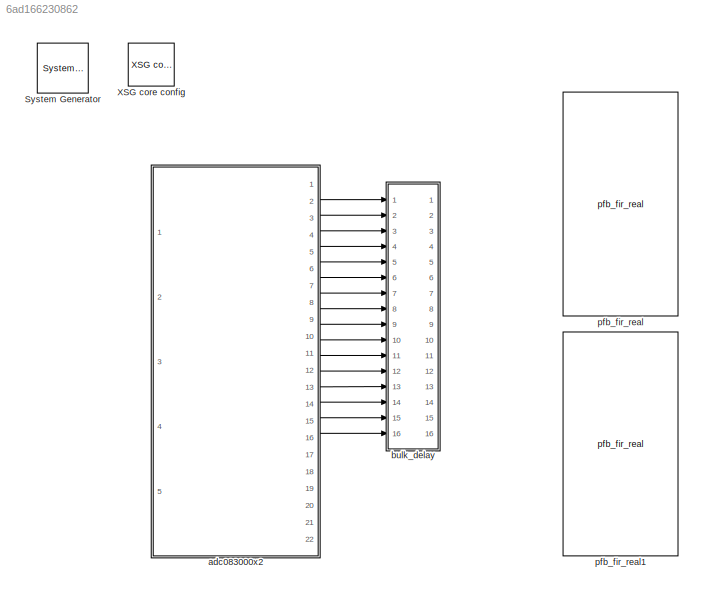
MODEL slx_6ad166230862
KIND model
BLOCK [Reference]  System Generator  REF=xbsIndex_r4/ System Generator
  AttributesFormatString = System\nGenerator
  Impl_file = ISE Defaults
  Ports = []
  SourceBlock = xbsIndex_r4/ System Generator
  SourceType = Xilinx System Generator Block
  Synth_file = XST Defaults
  Tag = genX
  UserDataPersistent = on
  block_type = sysgen
  block_version = 11.4
  clock_wrapper = Clock Enables
  core_generation = According to Block Masks
  dbl_ovrd = According to Block Masks
  dcm_input_clock_period = 100
  deprecated_control = off
  directory = ./spec_2pol_4kw_6tap_pfb/sysgen
  eval_field = 0
  has_advanced_control = 0
  incr_netlist = off
  infoedit = System Generator
  package = ff1136
  part = xc5vsx95t
  proj_type = Project Navigator
  run_coregen = off
  sg_icon_stat = 51,50,0,0,token,white,0,58c5b5770fe5f7c311f53dbc6e73f0f6,right,,[ ],[ ]
  sg_mask_display = fprintf('','COMMENT: begin icon graphics');\npatch([0 51 51 0 0 ],[0 0 50 50 0 ],[1 1 1 ]);\npatch([1.6375 16.81 27.31 37.81 48.31 27.31 12.1375 1.6375 ],[36.655 36.655 47.155 36.655 47.155 47.155 47.155 36.655 ],[0.933333 0.203922 0.141176 ]);\npatch([12.1375 27.31 16.81 1.6375 12.1375 ],[26.155 26.155 36.655 36.655 26.155 ],[0.698039 0.0313725 0.219608 ]);\npatch([1.6375 16.81 27.31 12.1375 1.6375 ]...<+327ch>
  sggui_pos = 326,241,464,470
  simulink_period = 1
  speed = -1
  synthesis_tool = XST
  sysclk_period = 2.6667
  testbench = off
  trim_vbits = Everywhere in SubSystem
  xilinxfamily = virtex5
BLOCK [Reference] XSG core config  REF=xps_library/XSG core config  (lib defined in mdl_00b5cec29cd0, mdl_02ab6ecaa3d1, +5 more)
  Ports = []
  ROACH2_clk_src = adc0_clk
  ROACH_clk_src = adc0_clk
  SourceBlock = xps_library/XSG core config
  SourceType = xsg core config
  Tag = xps:xsg
  clk_rate = 375
  clk_src = adc0_clk
  hw_sys = ROACH:sx95t
  sample_period = 1
  synthesis_tool = XST
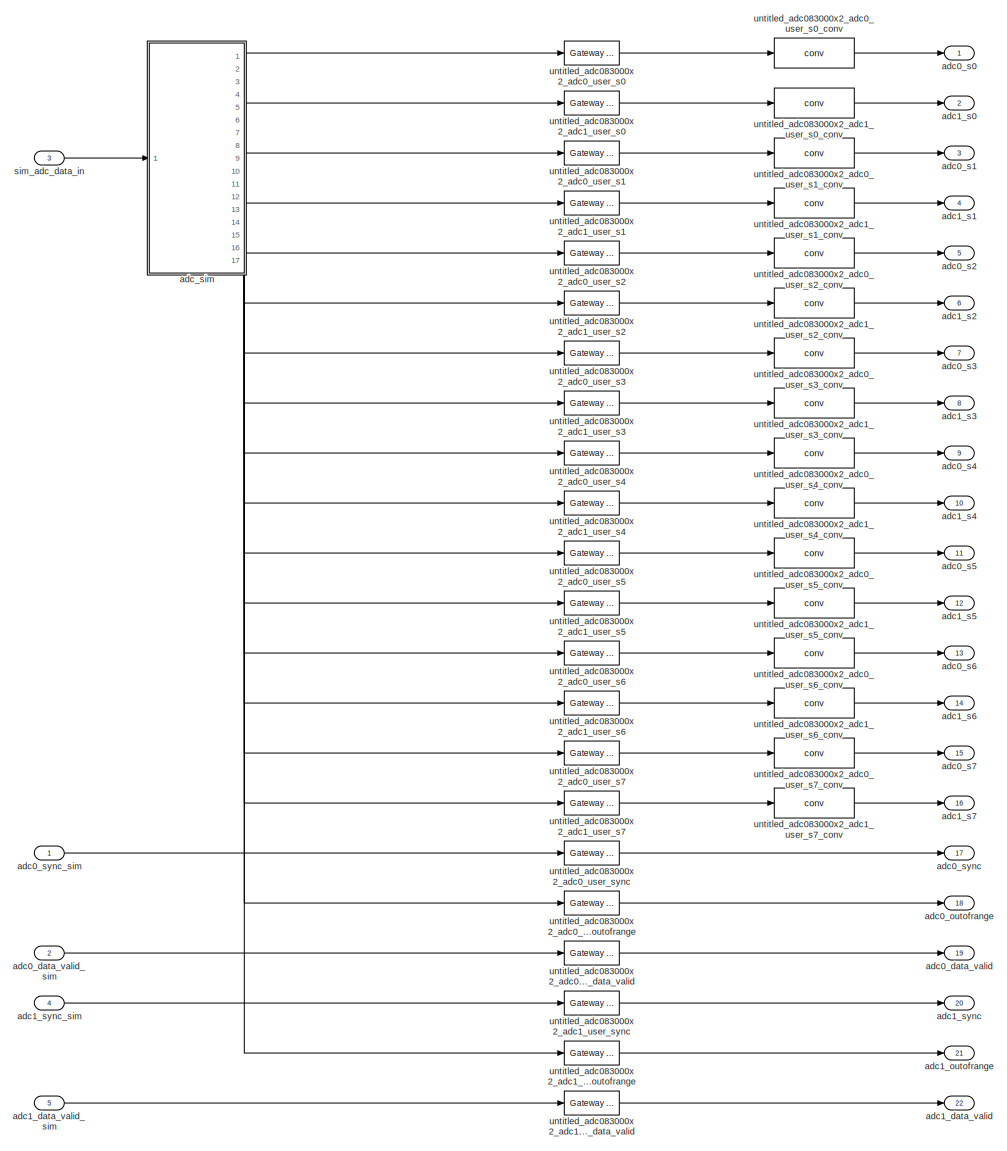
[diagram: adc083000x2 - part 1/1, most of the canvas]
BLOCK [SubSystem] adc083000x2
  AncestorBlock = xps_library/adc083000x2
  FunctionWithSeparateData = off
  MaskHideContents = off
  MinAlgLoopOccurrences = off
  Opaque = off
  Ports = [5, 22]
  PropExecContextOutsideSubsystem = off
  RTWSystemCode = Auto
  RequestExecContextInheritance = off
  Tag = xps:adc083000x2
BLOCK [Outport] adc083000x2/adc0_data_valid
  IconDisplay = Port number
  Port = 19
BLOCK [Inport] adc083000x2/adc0_data_valid_sim
  IconDisplay = Port number
  Port = 2
BLOCK [Outport] adc083000x2/adc0_outofrange
  IconDisplay = Port number
  Port = 18
BLOCK [Outport] adc083000x2/adc0_s0
  IconDisplay = Port number
BLOCK [Outport] adc083000x2/adc0_s1
  IconDisplay = Port number
  Port = 3
BLOCK [Outport] adc083000x2/adc0_s2
  IconDisplay = Port number
  Port = 5
BLOCK [Outport] adc083000x2/adc0_s3
  IconDisplay = Port number
  Port = 7
BLOCK [Outport] adc083000x2/adc0_s4
  IconDisplay = Port number
  Port = 9
BLOCK [Outport] adc083000x2/adc0_s5
  IconDisplay = Port number
  Port = 11
BLOCK [Outport] adc083000x2/adc0_s6
  IconDisplay = Port number
  Port = 13
BLOCK [Outport] adc083000x2/adc0_s7
  IconDisplay = Port number
  Port = 15
BLOCK [Outport] adc083000x2/adc0_sync
  IconDisplay = Port number
  Port = 17
BLOCK [Inport] adc083000x2/adc0_sync_sim
  IconDisplay = Port number
BLOCK [Outport] adc083000x2/adc1_data_valid
  IconDisplay = Port number
  Port = 22
BLOCK [Inport] adc083000x2/adc1_data_valid_sim
  IconDisplay = Port number
  Port = 5
BLOCK [Outport] adc083000x2/adc1_outofrange
  IconDisplay = Port number
  Port = 21
BLOCK [Outport] adc083000x2/adc1_s0
  IconDisplay = Port number
  Port = 2
BLOCK [Outport] adc083000x2/adc1_s1
  IconDisplay = Port number
  Port = 4
BLOCK [Outport] adc083000x2/adc1_s2
  IconDisplay = Port number
  Port = 6
BLOCK [Outport] adc083000x2/adc1_s3
  IconDisplay = Port number
  Port = 8
BLOCK [Outport] adc083000x2/adc1_s4
  IconDisplay = Port number
  Port = 10
BLOCK [Outport] adc083000x2/adc1_s5
  IconDisplay = Port number
  Port = 12
BLOCK [Outport] adc083000x2/adc1_s6
  IconDisplay = Port number
  Port = 14
BLOCK [Outport] adc083000x2/adc1_s7
  IconDisplay = Port number
  Port = 16
BLOCK [Outport] adc083000x2/adc1_sync
  IconDisplay = Port number
  Port = 20
BLOCK [Inport] adc083000x2/adc1_sync_sim
  IconDisplay = Port number
  Port = 4
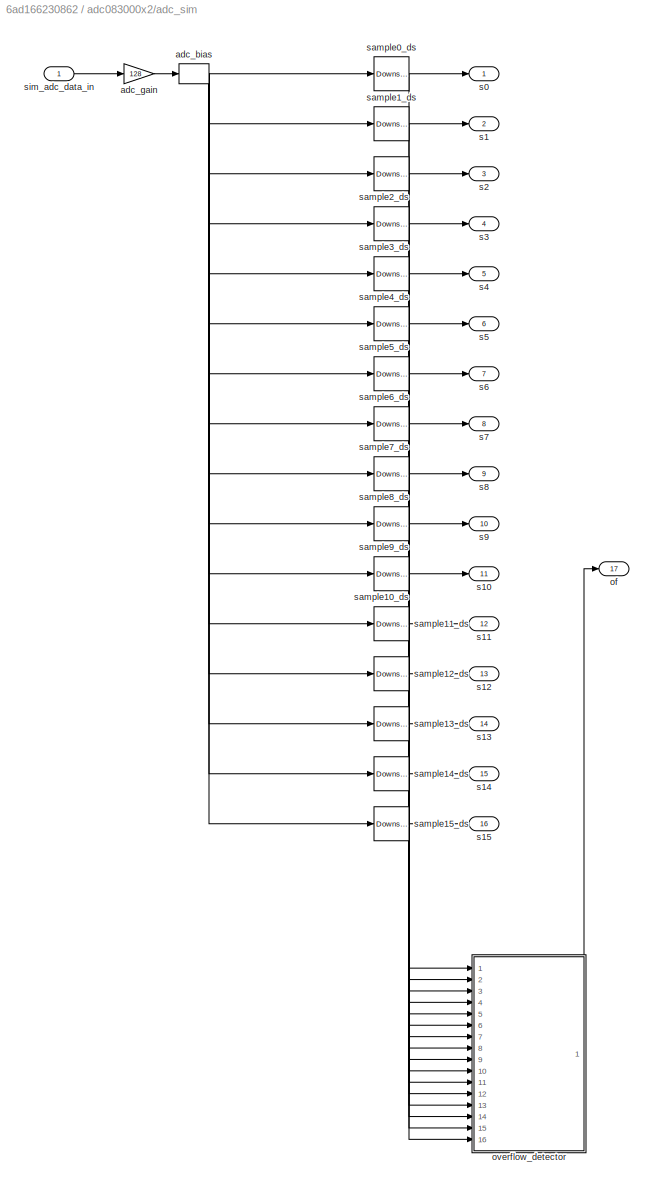
BLOCK [SubSystem] adc083000x2/adc_sim
  AncestorBlock = xps_library/ADCs/adc_sim
  FunctionWithSeparateData = off
  MaskHideContents = off
  MinAlgLoopOccurrences = off
  Opaque = off
  Ports = [1, 17]
  PropExecContextOutsideSubsystem = off
  RTWSystemCode = Auto
  RequestExecContextInheritance = off
  UserDataPersistent = on
BLOCK [Bias] adc083000x2/adc_sim/adc_bias
  Bias = 128
BLOCK [Gain] adc083000x2/adc_sim/adc_gain
  Gain = 128
  OutDataTypeStr = Inherit: Inherit via internal rule
  ParamDataTypeStr = Inherit: Inherit via internal rule
  SaturateOnIntegerOverflow = off
BLOCK [Outport] adc083000x2/adc_sim/of
  IconDisplay = Port number
  Port = 17
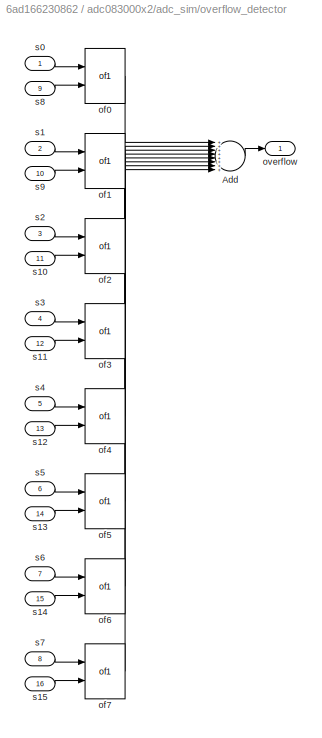
BLOCK [SubSystem] adc083000x2/adc_sim/overflow_detector
  AncestorBlock = xps_library/ADCs/of_detect_bus
  FunctionWithSeparateData = off
  MaskHideContents = off
  MinAlgLoopOccurrences = off
  Opaque = off
  Ports = [16, 1]
  PropExecContextOutsideSubsystem = off
  RTWSystemCode = Auto
  RequestExecContextInheritance = off
  UserDataPersistent = on
BLOCK [Sum] adc083000x2/adc_sim/overflow_detector/Add
  InputSameDT = off
  Inputs = ++++++++
  OutDataTypeStr = Inherit: Inherit via internal rule
  Ports = [8, 1]
  SaturateOnIntegerOverflow = off
BLOCK [Reference] adc083000x2/adc_sim/overflow_detector/of0  REF=xps_library/ADCs/of1  (lib defined in mdl_00b5cec29cd0, mdl_02ab6ecaa3d1, +5 more)
  Ports = [2, 1]
  SourceBlock = xps_library/ADCs/of1
  SourceType = of
  bit_num = 0
  n_adc_bits = 8
BLOCK [Reference] adc083000x2/adc_sim/overflow_detector/of1  REF=xps_library/ADCs/of1  (lib defined in mdl_00b5cec29cd0, mdl_02ab6ecaa3d1, +5 more)
  Ports = [2, 1]
  SourceBlock = xps_library/ADCs/of1
  SourceType = of
  bit_num = 0
  n_adc_bits = 8
BLOCK [Reference] adc083000x2/adc_sim/overflow_detector/of2  REF=xps_library/ADCs/of1  (lib defined in mdl_00b5cec29cd0, mdl_02ab6ecaa3d1, +5 more)
  Ports = [2, 1]
  SourceBlock = xps_library/ADCs/of1
  SourceType = of
  bit_num = 0
  n_adc_bits = 8
BLOCK [Reference] adc083000x2/adc_sim/overflow_detector/of3  REF=xps_library/ADCs/of1  (lib defined in mdl_00b5cec29cd0, mdl_02ab6ecaa3d1, +5 more)
  Ports = [2, 1]
  SourceBlock = xps_library/ADCs/of1
  SourceType = of
  bit_num = 0
  n_adc_bits = 8
BLOCK [Reference] adc083000x2/adc_sim/overflow_detector/of4  REF=xps_library/ADCs/of1  (lib defined in mdl_00b5cec29cd0, mdl_02ab6ecaa3d1, +5 more)
  Ports = [2, 1]
  SourceBlock = xps_library/ADCs/of1
  SourceType = of
  bit_num = 0
  n_adc_bits = 8
BLOCK [Reference] adc083000x2/adc_sim/overflow_detector/of5  REF=xps_library/ADCs/of1  (lib defined in mdl_00b5cec29cd0, mdl_02ab6ecaa3d1, +5 more)
  Ports = [2, 1]
  SourceBlock = xps_library/ADCs/of1
  SourceType = of
  bit_num = 0
  n_adc_bits = 8
BLOCK [Reference] adc083000x2/adc_sim/overflow_detector/of6  REF=xps_library/ADCs/of1  (lib defined in mdl_00b5cec29cd0, mdl_02ab6ecaa3d1, +5 more)
  Ports = [2, 1]
  SourceBlock = xps_library/ADCs/of1
  SourceType = of
  bit_num = 0
  n_adc_bits = 8
BLOCK [Reference] adc083000x2/adc_sim/overflow_detector/of7  REF=xps_library/ADCs/of1  (lib defined in mdl_00b5cec29cd0, mdl_02ab6ecaa3d1, +5 more)
  Ports = [2, 1]
  SourceBlock = xps_library/ADCs/of1
  SourceType = of
  bit_num = 0
  n_adc_bits = 8
BLOCK [Outport] adc083000x2/adc_sim/overflow_detector/overflow
  IconDisplay = Port number
BLOCK [Inport] adc083000x2/adc_sim/overflow_detector/s0
  IconDisplay = Port number
BLOCK [Inport] adc083000x2/adc_sim/overflow_detector/s1
  IconDisplay = Port number
  Port = 2
BLOCK [Inport] adc083000x2/adc_sim/overflow_detector/s10
  IconDisplay = Port number
  Port = 11
BLOCK [Inport] adc083000x2/adc_sim/overflow_detector/s11
  IconDisplay = Port number
  Port = 12
BLOCK [Inport] adc083000x2/adc_sim/overflow_detector/s12
  IconDisplay = Port number
  Port = 13
BLOCK [Inport] adc083000x2/adc_sim/overflow_detector/s13
  IconDisplay = Port number
  Port = 14
BLOCK [Inport] adc083000x2/adc_sim/overflow_detector/s14
  IconDisplay = Port number
  Port = 15
BLOCK [Inport] adc083000x2/adc_sim/overflow_detector/s15
  IconDisplay = Port number
  Port = 16
BLOCK [Inport] adc083000x2/adc_sim/overflow_detector/s2
  IconDisplay = Port number
  Port = 3
BLOCK [Inport] adc083000x2/adc_sim/overflow_detector/s3
  IconDisplay = Port number
  Port = 4
BLOCK [Inport] adc083000x2/adc_sim/overflow_detector/s4
  IconDisplay = Port number
  Port = 5
BLOCK [Inport] adc083000x2/adc_sim/overflow_detector/s5
  IconDisplay = Port number
  Port = 6
BLOCK [Inport] adc083000x2/adc_sim/overflow_detector/s6
  IconDisplay = Port number
  Port = 7
BLOCK [Inport] adc083000x2/adc_sim/overflow_detector/s7
  IconDisplay = Port number
  Port = 8
BLOCK [Inport] adc083000x2/adc_sim/overflow_detector/s8
  IconDisplay = Port number
  Port = 9
BLOCK [Inport] adc083000x2/adc_sim/overflow_detector/s9
  IconDisplay = Port number
  Port = 10
BLOCK [Outport] adc083000x2/adc_sim/s0
  IconDisplay = Port number
BLOCK [Outport] adc083000x2/adc_sim/s1
  IconDisplay = Port number
  Port = 2
BLOCK [Outport] adc083000x2/adc_sim/s10
  IconDisplay = Port number
  Port = 11
BLOCK [Outport] adc083000x2/adc_sim/s11
  IconDisplay = Port number
  Port = 12
BLOCK [Outport] adc083000x2/adc_sim/s12
  IconDisplay = Port number
  Port = 13
BLOCK [Outport] adc083000x2/adc_sim/s13
  IconDisplay = Port number
  Port = 14
BLOCK [Outport] adc083000x2/adc_sim/s14
  IconDisplay = Port number
  Port = 15
BLOCK [Outport] adc083000x2/adc_sim/s15
  IconDisplay = Port number
  Port = 16
BLOCK [Outport] adc083000x2/adc_sim/s2
  IconDisplay = Port number
  Port = 3
BLOCK [Outport] adc083000x2/adc_sim/s3
  IconDisplay = Port number
  Port = 4
BLOCK [Outport] adc083000x2/adc_sim/s4
  IconDisplay = Port number
  Port = 5
BLOCK [Outport] adc083000x2/adc_sim/s5
  IconDisplay = Port number
  Port = 6
BLOCK [Outport] adc083000x2/adc_sim/s6
  IconDisplay = Port number
  Port = 7
BLOCK [Outport] adc083000x2/adc_sim/s7
  IconDisplay = Port number
  Port = 8
BLOCK [Outport] adc083000x2/adc_sim/s8
  IconDisplay = Port number
  Port = 9
BLOCK [Outport] adc083000x2/adc_sim/s9
  IconDisplay = Port number
  Port = 10
BLOCK [Reference] adc083000x2/adc_sim/sample0_ds  REF=dspsigops/Downsample
  InputProcessing = Inherited (this choice will be removed - see release notes)
  N = 16
  Ports = [1, 1]
  RateOptions = Enforce single-rate processing
  SourceBlock = dspsigops/Downsample
  SourceType = Downsample
  UserDataPersistent = on
  fmode = Maintain input frame rate
  ic = 0
  phase = 1
  smode = Force single rate
BLOCK [Reference] adc083000x2/adc_sim/sample10_ds  REF=dspsigops/Downsample
  InputProcessing = Inherited (this choice will be removed - see release notes)
  N = 16
  Ports = [1, 1]
  RateOptions = Enforce single-rate processing
  SourceBlock = dspsigops/Downsample
  SourceType = Downsample
  UserDataPersistent = on
  fmode = Maintain input frame rate
  ic = 0
  phase = 11
  smode = Force single rate
BLOCK [Reference] adc083000x2/adc_sim/sample11_ds  REF=dspsigops/Downsample
  InputProcessing = Inherited (this choice will be removed - see release notes)
  N = 16
  Ports = [1, 1]
  RateOptions = Enforce single-rate processing
  SourceBlock = dspsigops/Downsample
  SourceType = Downsample
  UserDataPersistent = on
  fmode = Maintain input frame rate
  ic = 0
  phase = 12
  smode = Force single rate
BLOCK [Reference] adc083000x2/adc_sim/sample12_ds  REF=dspsigops/Downsample
  InputProcessing = Inherited (this choice will be removed - see release notes)
  N = 16
  Ports = [1, 1]
  RateOptions = Enforce single-rate processing
  SourceBlock = dspsigops/Downsample
  SourceType = Downsample
  UserDataPersistent = on
  fmode = Maintain input frame rate
  ic = 0
  phase = 13
  smode = Force single rate
BLOCK [Reference] adc083000x2/adc_sim/sample13_ds  REF=dspsigops/Downsample
  InputProcessing = Inherited (this choice will be removed - see release notes)
  N = 16
  Ports = [1, 1]
  RateOptions = Enforce single-rate processing
  SourceBlock = dspsigops/Downsample
  SourceType = Downsample
  UserDataPersistent = on
  fmode = Maintain input frame rate
  ic = 0
  phase = 14
  smode = Force single rate
BLOCK [Reference] adc083000x2/adc_sim/sample14_ds  REF=dspsigops/Downsample
  InputProcessing = Inherited (this choice will be removed - see release notes)
  N = 16
  Ports = [1, 1]
  RateOptions = Enforce single-rate processing
  SourceBlock = dspsigops/Downsample
  SourceType = Downsample
  UserDataPersistent = on
  fmode = Maintain input frame rate
  ic = 0
  phase = 15
  smode = Force single rate
BLOCK [Reference] adc083000x2/adc_sim/sample15_ds  REF=dspsigops/Downsample
  InputProcessing = Inherited (this choice will be removed - see release notes)
  N = 16
  Ports = [1, 1]
  RateOptions = Enforce single-rate processing
  SourceBlock = dspsigops/Downsample
  SourceType = Downsample
  UserDataPersistent = on
  fmode = Maintain input frame rate
  ic = 0
  phase = 0
  smode = Force single rate
BLOCK [Reference] adc083000x2/adc_sim/sample1_ds  REF=dspsigops/Downsample
  InputProcessing = Inherited (this choice will be removed - see release notes)
  N = 16
  Ports = [1, 1]
  RateOptions = Enforce single-rate processing
  SourceBlock = dspsigops/Downsample
  SourceType = Downsample
  UserDataPersistent = on
  fmode = Maintain input frame rate
  ic = 0
  phase = 2
  smode = Force single rate
BLOCK [Reference] adc083000x2/adc_sim/sample2_ds  REF=dspsigops/Downsample
  InputProcessing = Inherited (this choice will be removed - see release notes)
  N = 16
  Ports = [1, 1]
  RateOptions = Enforce single-rate processing
  SourceBlock = dspsigops/Downsample
  SourceType = Downsample
  UserDataPersistent = on
  fmode = Maintain input frame rate
  ic = 0
  phase = 3
  smode = Force single rate
BLOCK [Reference] adc083000x2/adc_sim/sample3_ds  REF=dspsigops/Downsample
  InputProcessing = Inherited (this choice will be removed - see release notes)
  N = 16
  Ports = [1, 1]
  RateOptions = Enforce single-rate processing
  SourceBlock = dspsigops/Downsample
  SourceType = Downsample
  UserDataPersistent = on
  fmode = Maintain input frame rate
  ic = 0
  phase = 4
  smode = Force single rate
BLOCK [Reference] adc083000x2/adc_sim/sample4_ds  REF=dspsigops/Downsample
  InputProcessing = Inherited (this choice will be removed - see release notes)
  N = 16
  Ports = [1, 1]
  RateOptions = Enforce single-rate processing
  SourceBlock = dspsigops/Downsample
  SourceType = Downsample
  UserDataPersistent = on
  fmode = Maintain input frame rate
  ic = 0
  phase = 5
  smode = Force single rate
BLOCK [Reference] adc083000x2/adc_sim/sample5_ds  REF=dspsigops/Downsample
  InputProcessing = Inherited (this choice will be removed - see release notes)
  N = 16
  Ports = [1, 1]
  RateOptions = Enforce single-rate processing
  SourceBlock = dspsigops/Downsample
  SourceType = Downsample
  UserDataPersistent = on
  fmode = Maintain input frame rate
  ic = 0
  phase = 6
  smode = Force single rate
BLOCK [Reference] adc083000x2/adc_sim/sample6_ds  REF=dspsigops/Downsample
  InputProcessing = Inherited (this choice will be removed - see release notes)
  N = 16
  Ports = [1, 1]
  RateOptions = Enforce single-rate processing
  SourceBlock = dspsigops/Downsample
  SourceType = Downsample
  UserDataPersistent = on
  fmode = Maintain input frame rate
  ic = 0
  phase = 7
  smode = Force single rate
BLOCK [Reference] adc083000x2/adc_sim/sample7_ds  REF=dspsigops/Downsample
  InputProcessing = Inherited (this choice will be removed - see release notes)
  N = 16
  Ports = [1, 1]
  RateOptions = Enforce single-rate processing
  SourceBlock = dspsigops/Downsample
  SourceType = Downsample
  UserDataPersistent = on
  fmode = Maintain input frame rate
  ic = 0
  phase = 8
  smode = Force single rate
BLOCK [Reference] adc083000x2/adc_sim/sample8_ds  REF=dspsigops/Downsample
  InputProcessing = Inherited (this choice will be removed - see release notes)
  N = 16
  Ports = [1, 1]
  RateOptions = Enforce single-rate processing
  SourceBlock = dspsigops/Downsample
  SourceType = Downsample
  UserDataPersistent = on
  fmode = Maintain input frame rate
  ic = 0
  phase = 9
  smode = Force single rate
BLOCK [Reference] adc083000x2/adc_sim/sample9_ds  REF=dspsigops/Downsample
  InputProcessing = Inherited (this choice will be removed - see release notes)
  N = 16
  Ports = [1, 1]
  RateOptions = Enforce single-rate processing
  SourceBlock = dspsigops/Downsample
  SourceType = Downsample
  UserDataPersistent = on
  fmode = Maintain input frame rate
  ic = 0
  phase = 10
  smode = Force single rate
BLOCK [Inport] adc083000x2/adc_sim/sim_adc_data_in
  IconDisplay = Port number
BLOCK [Inport] adc083000x2/sim_adc_data_in
  IconDisplay = Port number
  Port = 3
BLOCK [Reference] adc083000x2/untitled_adc083000x2_adc0_user_data_valid  REF=xbsIndex_r4/Gateway In
  ADCChannel = '1'
  LOCs = {}
  Ports = [1, 1]
  SourceBlock = xbsIndex_r4/Gateway In
  SourceType = Xilinx Gateway In Block
  UseAsADC = off
  arith_type = Unsigned
  bin_pt = 0
  block_type = gatewayin
  dbl_ovrd = off
  exp_width = 8
  frac_width = 24
  gui_display_data_type = Fixed-point
  has_advanced_control = 0
  hdl_port = on
  infoedit = Gateway in block.  Converts inputs of type Simulink integer, single, double and fixed-point to  Xilinx fixed-point or floating-point data type.<br><br>Hardware notes:  In hardware these blocks become top level input ports.  <repeated x22 — deduplicated; at blocks: untitled_adc083000x2_adc0_user_data_valid, untitled_adc083000x2_adc0_user_outofrange, untitled_adc083000x2_adc0_user_s0, untitled_adc083000x2_adc0_user_s1, untitled_adc083000x2_adc0_user_s2, untitled_adc083000x2_adc0_user_s3, untitled_adc083000x2_adc0_user_s4, untitled_adc083000x2_adc0_user_s5, untitled_adc083000x2_adc0_user_s6, untitled_adc083000x2_adc0_user_s7, untitled_adc083000x2_adc0_user_sync, untitled_adc083000x2_adc1_user_data_valid, untitled_adc083000x2_adc1_user_outofrange, untitled_adc083000x2_adc1_user_s0, untitled_adc083000x2_adc1_user_s1, untitled_adc083000x2_adc1_user_s2, +6 more>
  inherit_from_input = off
  locs_specified = off
  n_bits = 1
  overflow = Saturate
  period = 1
  preci_type = Single
  quantization = Round  (unbiased: +/- Inf)
  sg_icon_stat = 55,24,1,1,white,yellow,1,00d3666e,right,,[ ],[ ]
  sg_mask_display = fprintf('','COMMENT: begin icon graphics');\npatch([0 55 55 0 0 ],[0 0 24 24 0 ],[0.95 0.93 0.65 ]);\nplot([0 55 55 0 0 ],[0 0 24 24 0 ]);\npatch([20.325 24.66 27.66 30.66 33.66 27.66 23.325 20.325 ],[15.33 15.33 18.33 15.33 18.33 18.33 18.33 15.33 ],[1 1 1 ]);\npatch([23.325 27.66 24.66 20.325 23.325 ],[12.33 12.33 15.33 15.33 12.33 ],[0.985 0.979 0.895 ]);\npatch([20.325 24.66 27.66 23.325 20.325 ],[...<+395ch>  <repeated x22 — deduplicated; at blocks: untitled_adc083000x2_adc0_user_data_valid, untitled_adc083000x2_adc0_user_outofrange, untitled_adc083000x2_adc0_user_s0, untitled_adc083000x2_adc0_user_s1, untitled_adc083000x2_adc0_user_s2, untitled_adc083000x2_adc0_user_s3, untitled_adc083000x2_adc0_user_s4, untitled_adc083000x2_adc0_user_s5, untitled_adc083000x2_adc0_user_s6, untitled_adc083000x2_adc0_user_s7, untitled_adc083000x2_adc0_user_sync, untitled_adc083000x2_adc1_user_data_valid, untitled_adc083000x2_adc1_user_outofrange, untitled_adc083000x2_adc1_user_s0, untitled_adc083000x2_adc1_user_s1, untitled_adc083000x2_adc1_user_s2, +6 more>
  sggui_pos = -1,-1,-1,-1
  timing_constraint = None
  xl_area = [0,0,0,0,0,0,0]
  xl_use_area = off
BLOCK [Reference] adc083000x2/untitled_adc083000x2_adc0_user_outofrange  REF=xbsIndex_r4/Gateway In
  ADCChannel = '1'
  LOCs = {}
  Ports = [1, 1]
  SourceBlock = xbsIndex_r4/Gateway In
  SourceType = Xilinx Gateway In Block
  UseAsADC = off
  arith_type = Unsigned
  bin_pt = 0
  block_type = gatewayin
  dbl_ovrd = off
  exp_width = 8
  frac_width = 24
  gui_display_data_type = Fixed-point
  has_advanced_control = 0
  hdl_port = on
  inherit_from_input = off
  locs_specified = off
  n_bits = 4
  overflow = Saturate
  period = 1
  preci_type = Single
  quantization = Round  (unbiased: +/- Inf)
  sg_icon_stat = 55,24,1,1,white,yellow,1,00d3666e,right,,[ ],[ ]
  sggui_pos = -1,-1,-1,-1
  timing_constraint = None
  xl_area = [0,0,0,0,0,0,0]
  xl_use_area = off
BLOCK [Reference] adc083000x2/untitled_adc083000x2_adc0_user_s0  REF=xbsIndex_r4/Gateway In
  ADCChannel = '1'
  LOCs = {}
  Ports = [1, 1]
  SourceBlock = xbsIndex_r4/Gateway In
  SourceType = Xilinx Gateway In Block
  UseAsADC = off
  arith_type = Unsigned
  bin_pt = 0
  block_type = gatewayin
  dbl_ovrd = off
  exp_width = 8
  frac_width = 24
  gui_display_data_type = Fixed-point
  has_advanced_control = 0
  hdl_port = on
  inherit_from_input = off
  locs_specified = off
  n_bits = 8
  overflow = Saturate
  period = 1
  preci_type = Single
  quantization = Round  (unbiased: +/- Inf)
  sg_icon_stat = 55,24,1,1,white,yellow,1,00d3666e,right,,[ ],[ ]
  sggui_pos = -1,-1,-1,-1
  timing_constraint = None
  xl_area = [0,0,0,0,0,0,0]
  xl_use_area = off
BLOCK [Reference] adc083000x2/untitled_adc083000x2_adc0_user_s0_conv  REF=xps_library/ADCs/conv  (lib defined in mdl_00b5cec29cd0, mdl_02ab6ecaa3d1, +5 more)
  Ports = [1, 1]
  SourceBlock = xps_library/ADCs/conv
  bit_width = 8
BLOCK [Reference] adc083000x2/untitled_adc083000x2_adc0_user_s1  REF=xbsIndex_r4/Gateway In
  ADCChannel = '1'
  LOCs = {}
  Ports = [1, 1]
  SourceBlock = xbsIndex_r4/Gateway In
  SourceType = Xilinx Gateway In Block
  UseAsADC = off
  arith_type = Unsigned
  bin_pt = 0
  block_type = gatewayin
  dbl_ovrd = off
  exp_width = 8
  frac_width = 24
  gui_display_data_type = Fixed-point
  has_advanced_control = 0
  hdl_port = on
  inherit_from_input = off
  locs_specified = off
  n_bits = 8
  overflow = Saturate
  period = 1
  preci_type = Single
  quantization = Round  (unbiased: +/- Inf)
  sg_icon_stat = 55,24,1,1,white,yellow,1,00d3666e,right,,[ ],[ ]
  sggui_pos = -1,-1,-1,-1
  timing_constraint = None
  xl_area = [0,0,0,0,0,0,0]
  xl_use_area = off
BLOCK [Reference] adc083000x2/untitled_adc083000x2_adc0_user_s1_conv  REF=xps_library/ADCs/conv  (lib defined in mdl_00b5cec29cd0, mdl_02ab6ecaa3d1, +5 more)
  Ports = [1, 1]
  SourceBlock = xps_library/ADCs/conv
  bit_width = 8
BLOCK [Reference] adc083000x2/untitled_adc083000x2_adc0_user_s2  REF=xbsIndex_r4/Gateway In
  ADCChannel = '1'
  LOCs = {}
  Ports = [1, 1]
  SourceBlock = xbsIndex_r4/Gateway In
  SourceType = Xilinx Gateway In Block
  UseAsADC = off
  arith_type = Unsigned
  bin_pt = 0
  block_type = gatewayin
  dbl_ovrd = off
  exp_width = 8
  frac_width = 24
  gui_display_data_type = Fixed-point
  has_advanced_control = 0
  hdl_port = on
  inherit_from_input = off
  locs_specified = off
  n_bits = 8
  overflow = Saturate
  period = 1
  preci_type = Single
  quantization = Round  (unbiased: +/- Inf)
  sg_icon_stat = 55,24,1,1,white,yellow,1,00d3666e,right,,[ ],[ ]
  sggui_pos = -1,-1,-1,-1
  timing_constraint = None
  xl_area = [0,0,0,0,0,0,0]
  xl_use_area = off
BLOCK [Reference] adc083000x2/untitled_adc083000x2_adc0_user_s2_conv  REF=xps_library/ADCs/conv  (lib defined in mdl_00b5cec29cd0, mdl_02ab6ecaa3d1, +5 more)
  Ports = [1, 1]
  SourceBlock = xps_library/ADCs/conv
  bit_width = 8
BLOCK [Reference] adc083000x2/untitled_adc083000x2_adc0_user_s3  REF=xbsIndex_r4/Gateway In
  ADCChannel = '1'
  LOCs = {}
  Ports = [1, 1]
  SourceBlock = xbsIndex_r4/Gateway In
  SourceType = Xilinx Gateway In Block
  UseAsADC = off
  arith_type = Unsigned
  bin_pt = 0
  block_type = gatewayin
  dbl_ovrd = off
  exp_width = 8
  frac_width = 24
  gui_display_data_type = Fixed-point
  has_advanced_control = 0
  hdl_port = on
  inherit_from_input = off
  locs_specified = off
  n_bits = 8
  overflow = Saturate
  period = 1
  preci_type = Single
  quantization = Round  (unbiased: +/- Inf)
  sg_icon_stat = 55,24,1,1,white,yellow,1,00d3666e,right,,[ ],[ ]
  sggui_pos = -1,-1,-1,-1
  timing_constraint = None
  xl_area = [0,0,0,0,0,0,0]
  xl_use_area = off
BLOCK [Reference] adc083000x2/untitled_adc083000x2_adc0_user_s3_conv  REF=xps_library/ADCs/conv  (lib defined in mdl_00b5cec29cd0, mdl_02ab6ecaa3d1, +5 more)
  Ports = [1, 1]
  SourceBlock = xps_library/ADCs/conv
  bit_width = 8
BLOCK [Reference] adc083000x2/untitled_adc083000x2_adc0_user_s4  REF=xbsIndex_r4/Gateway In
  ADCChannel = '1'
  LOCs = {}
  Ports = [1, 1]
  SourceBlock = xbsIndex_r4/Gateway In
  SourceType = Xilinx Gateway In Block
  UseAsADC = off
  arith_type = Unsigned
  bin_pt = 0
  block_type = gatewayin
  dbl_ovrd = off
  exp_width = 8
  frac_width = 24
  gui_display_data_type = Fixed-point
  has_advanced_control = 0
  hdl_port = on
  inherit_from_input = off
  locs_specified = off
  n_bits = 8
  overflow = Saturate
  period = 1
  preci_type = Single
  quantization = Round  (unbiased: +/- Inf)
  sg_icon_stat = 55,24,1,1,white,yellow,1,00d3666e,right,,[ ],[ ]
  sggui_pos = -1,-1,-1,-1
  timing_constraint = None
  xl_area = [0,0,0,0,0,0,0]
  xl_use_area = off
BLOCK [Reference] adc083000x2/untitled_adc083000x2_adc0_user_s4_conv  REF=xps_library/ADCs/conv  (lib defined in mdl_00b5cec29cd0, mdl_02ab6ecaa3d1, +5 more)
  Ports = [1, 1]
  SourceBlock = xps_library/ADCs/conv
  bit_width = 8
BLOCK [Reference] adc083000x2/untitled_adc083000x2_adc0_user_s5  REF=xbsIndex_r4/Gateway In
  ADCChannel = '1'
  LOCs = {}
  Ports = [1, 1]
  SourceBlock = xbsIndex_r4/Gateway In
  SourceType = Xilinx Gateway In Block
  UseAsADC = off
  arith_type = Unsigned
  bin_pt = 0
  block_type = gatewayin
  dbl_ovrd = off
  exp_width = 8
  frac_width = 24
  gui_display_data_type = Fixed-point
  has_advanced_control = 0
  hdl_port = on
  inherit_from_input = off
  locs_specified = off
  n_bits = 8
  overflow = Saturate
  period = 1
  preci_type = Single
  quantization = Round  (unbiased: +/- Inf)
  sg_icon_stat = 55,24,1,1,white,yellow,1,00d3666e,right,,[ ],[ ]
  sggui_pos = -1,-1,-1,-1
  timing_constraint = None
  xl_area = [0,0,0,0,0,0,0]
  xl_use_area = off
BLOCK [Reference] adc083000x2/untitled_adc083000x2_adc0_user_s5_conv  REF=xps_library/ADCs/conv  (lib defined in mdl_00b5cec29cd0, mdl_02ab6ecaa3d1, +5 more)
  Ports = [1, 1]
  SourceBlock = xps_library/ADCs/conv
  bit_width = 8
BLOCK [Reference] adc083000x2/untitled_adc083000x2_adc0_user_s6  REF=xbsIndex_r4/Gateway In
  ADCChannel = '1'
  LOCs = {}
  Ports = [1, 1]
  SourceBlock = xbsIndex_r4/Gateway In
  SourceType = Xilinx Gateway In Block
  UseAsADC = off
  arith_type = Unsigned
  bin_pt = 0
  block_type = gatewayin
  dbl_ovrd = off
  exp_width = 8
  frac_width = 24
  gui_display_data_type = Fixed-point
  has_advanced_control = 0
  hdl_port = on
  inherit_from_input = off
  locs_specified = off
  n_bits = 8
  overflow = Saturate
  period = 1
  preci_type = Single
  quantization = Round  (unbiased: +/- Inf)
  sg_icon_stat = 55,24,1,1,white,yellow,1,00d3666e,right,,[ ],[ ]
  sggui_pos = -1,-1,-1,-1
  timing_constraint = None
  xl_area = [0,0,0,0,0,0,0]
  xl_use_area = off
BLOCK [Reference] adc083000x2/untitled_adc083000x2_adc0_user_s6_conv  REF=xps_library/ADCs/conv  (lib defined in mdl_00b5cec29cd0, mdl_02ab6ecaa3d1, +5 more)
  Ports = [1, 1]
  SourceBlock = xps_library/ADCs/conv
  bit_width = 8
BLOCK [Reference] adc083000x2/untitled_adc083000x2_adc0_user_s7  REF=xbsIndex_r4/Gateway In
  ADCChannel = '1'
  LOCs = {}
  Ports = [1, 1]
  SourceBlock = xbsIndex_r4/Gateway In
  SourceType = Xilinx Gateway In Block
  UseAsADC = off
  arith_type = Unsigned
  bin_pt = 0
  block_type = gatewayin
  dbl_ovrd = off
  exp_width = 8
  frac_width = 24
  gui_display_data_type = Fixed-point
  has_advanced_control = 0
  hdl_port = on
  inherit_from_input = off
  locs_specified = off
  n_bits = 8
  overflow = Saturate
  period = 1
  preci_type = Single
  quantization = Round  (unbiased: +/- Inf)
  sg_icon_stat = 55,24,1,1,white,yellow,1,00d3666e,right,,[ ],[ ]
  sggui_pos = -1,-1,-1,-1
  timing_constraint = None
  xl_area = [0,0,0,0,0,0,0]
  xl_use_area = off
BLOCK [Reference] adc083000x2/untitled_adc083000x2_adc0_user_s7_conv  REF=xps_library/ADCs/conv  (lib defined in mdl_00b5cec29cd0, mdl_02ab6ecaa3d1, +5 more)
  Ports = [1, 1]
  SourceBlock = xps_library/ADCs/conv
  bit_width = 8
BLOCK [Reference] adc083000x2/untitled_adc083000x2_adc0_user_sync  REF=xbsIndex_r4/Gateway In
  ADCChannel = '1'
  LOCs = {}
  Ports = [1, 1]
  SourceBlock = xbsIndex_r4/Gateway In
  SourceType = Xilinx Gateway In Block
  UseAsADC = off
  arith_type = Unsigned
  bin_pt = 0
  block_type = gatewayin
  dbl_ovrd = off
  exp_width = 8
  frac_width = 24
  gui_display_data_type = Fixed-point
  has_advanced_control = 0
  hdl_port = on
  inherit_from_input = off
  locs_specified = off
  n_bits = 4
  overflow = Saturate
  period = 1
  preci_type = Single
  quantization = Round  (unbiased: +/- Inf)
  sg_icon_stat = 55,24,1,1,white,yellow,1,00d3666e,right,,[ ],[ ]
  sggui_pos = -1,-1,-1,-1
  timing_constraint = None
  xl_area = [0,0,0,0,0,0,0]
  xl_use_area = off
BLOCK [Reference] adc083000x2/untitled_adc083000x2_adc1_user_data_valid  REF=xbsIndex_r4/Gateway In
  ADCChannel = '1'
  LOCs = {}
  Ports = [1, 1]
  SourceBlock = xbsIndex_r4/Gateway In
  SourceType = Xilinx Gateway In Block
  UseAsADC = off
  arith_type = Unsigned
  bin_pt = 0
  block_type = gatewayin
  dbl_ovrd = off
  exp_width = 8
  frac_width = 24
  gui_display_data_type = Fixed-point
  has_advanced_control = 0
  hdl_port = on
  inherit_from_input = off
  locs_specified = off
  n_bits = 1
  overflow = Saturate
  period = 1
  preci_type = Single
  quantization = Round  (unbiased: +/- Inf)
  sg_icon_stat = 55,24,1,1,white,yellow,1,00d3666e,right,,[ ],[ ]
  sggui_pos = -1,-1,-1,-1
  timing_constraint = None
  xl_area = [0,0,0,0,0,0,0]
  xl_use_area = off
BLOCK [Reference] adc083000x2/untitled_adc083000x2_adc1_user_outofrange  REF=xbsIndex_r4/Gateway In
  ADCChannel = '1'
  LOCs = {}
  Ports = [1, 1]
  SourceBlock = xbsIndex_r4/Gateway In
  SourceType = Xilinx Gateway In Block
  UseAsADC = off
  arith_type = Unsigned
  bin_pt = 0
  block_type = gatewayin
  dbl_ovrd = off
  exp_width = 8
  frac_width = 24
  gui_display_data_type = Fixed-point
  has_advanced_control = 0
  hdl_port = on
  inherit_from_input = off
  locs_specified = off
  n_bits = 4
  overflow = Saturate
  period = 1
  preci_type = Single
  quantization = Round  (unbiased: +/- Inf)
  sg_icon_stat = 55,24,1,1,white,yellow,1,00d3666e,right,,[ ],[ ]
  sggui_pos = -1,-1,-1,-1
  timing_constraint = None
  xl_area = [0,0,0,0,0,0,0]
  xl_use_area = off
BLOCK [Reference] adc083000x2/untitled_adc083000x2_adc1_user_s0  REF=xbsIndex_r4/Gateway In
  ADCChannel = '1'
  LOCs = {}
  Ports = [1, 1]
  SourceBlock = xbsIndex_r4/Gateway In
  SourceType = Xilinx Gateway In Block
  UseAsADC = off
  arith_type = Unsigned
  bin_pt = 0
  block_type = gatewayin
  dbl_ovrd = off
  exp_width = 8
  frac_width = 24
  gui_display_data_type = Fixed-point
  has_advanced_control = 0
  hdl_port = on
  inherit_from_input = off
  locs_specified = off
  n_bits = 8
  overflow = Saturate
  period = 1
  preci_type = Single
  quantization = Round  (unbiased: +/- Inf)
  sg_icon_stat = 55,24,1,1,white,yellow,1,00d3666e,right,,[ ],[ ]
  sggui_pos = -1,-1,-1,-1
  timing_constraint = None
  xl_area = [0,0,0,0,0,0,0]
  xl_use_area = off
BLOCK [Reference] adc083000x2/untitled_adc083000x2_adc1_user_s0_conv  REF=xps_library/ADCs/conv  (lib defined in mdl_00b5cec29cd0, mdl_02ab6ecaa3d1, +5 more)
  Ports = [1, 1]
  SourceBlock = xps_library/ADCs/conv
  bit_width = 8
BLOCK [Reference] adc083000x2/untitled_adc083000x2_adc1_user_s1  REF=xbsIndex_r4/Gateway In
  ADCChannel = '1'
  LOCs = {}
  Ports = [1, 1]
  SourceBlock = xbsIndex_r4/Gateway In
  SourceType = Xilinx Gateway In Block
  UseAsADC = off
  arith_type = Unsigned
  bin_pt = 0
  block_type = gatewayin
  dbl_ovrd = off
  exp_width = 8
  frac_width = 24
  gui_display_data_type = Fixed-point
  has_advanced_control = 0
  hdl_port = on
  inherit_from_input = off
  locs_specified = off
  n_bits = 8
  overflow = Saturate
  period = 1
  preci_type = Single
  quantization = Round  (unbiased: +/- Inf)
  sg_icon_stat = 55,24,1,1,white,yellow,1,00d3666e,right,,[ ],[ ]
  sggui_pos = -1,-1,-1,-1
  timing_constraint = None
  xl_area = [0,0,0,0,0,0,0]
  xl_use_area = off
BLOCK [Reference] adc083000x2/untitled_adc083000x2_adc1_user_s1_conv  REF=xps_library/ADCs/conv  (lib defined in mdl_00b5cec29cd0, mdl_02ab6ecaa3d1, +5 more)
  Ports = [1, 1]
  SourceBlock = xps_library/ADCs/conv
  bit_width = 8
BLOCK [Reference] adc083000x2/untitled_adc083000x2_adc1_user_s2  REF=xbsIndex_r4/Gateway In
  ADCChannel = '1'
  LOCs = {}
  Ports = [1, 1]
  SourceBlock = xbsIndex_r4/Gateway In
  SourceType = Xilinx Gateway In Block
  UseAsADC = off
  arith_type = Unsigned
  bin_pt = 0
  block_type = gatewayin
  dbl_ovrd = off
  exp_width = 8
  frac_width = 24
  gui_display_data_type = Fixed-point
  has_advanced_control = 0
  hdl_port = on
  inherit_from_input = off
  locs_specified = off
  n_bits = 8
  overflow = Saturate
  period = 1
  preci_type = Single
  quantization = Round  (unbiased: +/- Inf)
  sg_icon_stat = 55,24,1,1,white,yellow,1,00d3666e,right,,[ ],[ ]
  sggui_pos = -1,-1,-1,-1
  timing_constraint = None
  xl_area = [0,0,0,0,0,0,0]
  xl_use_area = off
BLOCK [Reference] adc083000x2/untitled_adc083000x2_adc1_user_s2_conv  REF=xps_library/ADCs/conv  (lib defined in mdl_00b5cec29cd0, mdl_02ab6ecaa3d1, +5 more)
  Ports = [1, 1]
  SourceBlock = xps_library/ADCs/conv
  bit_width = 8
BLOCK [Reference] adc083000x2/untitled_adc083000x2_adc1_user_s3  REF=xbsIndex_r4/Gateway In
  ADCChannel = '1'
  LOCs = {}
  Ports = [1, 1]
  SourceBlock = xbsIndex_r4/Gateway In
  SourceType = Xilinx Gateway In Block
  UseAsADC = off
  arith_type = Unsigned
  bin_pt = 0
  block_type = gatewayin
  dbl_ovrd = off
  exp_width = 8
  frac_width = 24
  gui_display_data_type = Fixed-point
  has_advanced_control = 0
  hdl_port = on
  inherit_from_input = off
  locs_specified = off
  n_bits = 8
  overflow = Saturate
  period = 1
  preci_type = Single
  quantization = Round  (unbiased: +/- Inf)
  sg_icon_stat = 55,24,1,1,white,yellow,1,00d3666e,right,,[ ],[ ]
  sggui_pos = -1,-1,-1,-1
  timing_constraint = None
  xl_area = [0,0,0,0,0,0,0]
  xl_use_area = off
BLOCK [Reference] adc083000x2/untitled_adc083000x2_adc1_user_s3_conv  REF=xps_library/ADCs/conv  (lib defined in mdl_00b5cec29cd0, mdl_02ab6ecaa3d1, +5 more)
  Ports = [1, 1]
  SourceBlock = xps_library/ADCs/conv
  bit_width = 8
BLOCK [Reference] adc083000x2/untitled_adc083000x2_adc1_user_s4  REF=xbsIndex_r4/Gateway In
  ADCChannel = '1'
  LOCs = {}
  Ports = [1, 1]
  SourceBlock = xbsIndex_r4/Gateway In
  SourceType = Xilinx Gateway In Block
  UseAsADC = off
  arith_type = Unsigned
  bin_pt = 0
  block_type = gatewayin
  dbl_ovrd = off
  exp_width = 8
  frac_width = 24
  gui_display_data_type = Fixed-point
  has_advanced_control = 0
  hdl_port = on
  inherit_from_input = off
  locs_specified = off
  n_bits = 8
  overflow = Saturate
  period = 1
  preci_type = Single
  quantization = Round  (unbiased: +/- Inf)
  sg_icon_stat = 55,24,1,1,white,yellow,1,00d3666e,right,,[ ],[ ]
  sggui_pos = -1,-1,-1,-1
  timing_constraint = None
  xl_area = [0,0,0,0,0,0,0]
  xl_use_area = off
BLOCK [Reference] adc083000x2/untitled_adc083000x2_adc1_user_s4_conv  REF=xps_library/ADCs/conv  (lib defined in mdl_00b5cec29cd0, mdl_02ab6ecaa3d1, +5 more)
  Ports = [1, 1]
  SourceBlock = xps_library/ADCs/conv
  bit_width = 8
BLOCK [Reference] adc083000x2/untitled_adc083000x2_adc1_user_s5  REF=xbsIndex_r4/Gateway In
  ADCChannel = '1'
  LOCs = {}
  Ports = [1, 1]
  SourceBlock = xbsIndex_r4/Gateway In
  SourceType = Xilinx Gateway In Block
  UseAsADC = off
  arith_type = Unsigned
  bin_pt = 0
  block_type = gatewayin
  dbl_ovrd = off
  exp_width = 8
  frac_width = 24
  gui_display_data_type = Fixed-point
  has_advanced_control = 0
  hdl_port = on
  inherit_from_input = off
  locs_specified = off
  n_bits = 8
  overflow = Saturate
  period = 1
  preci_type = Single
  quantization = Round  (unbiased: +/- Inf)
  sg_icon_stat = 55,24,1,1,white,yellow,1,00d3666e,right,,[ ],[ ]
  sggui_pos = -1,-1,-1,-1
  timing_constraint = None
  xl_area = [0,0,0,0,0,0,0]
  xl_use_area = off
BLOCK [Reference] adc083000x2/untitled_adc083000x2_adc1_user_s5_conv  REF=xps_library/ADCs/conv  (lib defined in mdl_00b5cec29cd0, mdl_02ab6ecaa3d1, +5 more)
  Ports = [1, 1]
  SourceBlock = xps_library/ADCs/conv
  bit_width = 8
BLOCK [Reference] adc083000x2/untitled_adc083000x2_adc1_user_s6  REF=xbsIndex_r4/Gateway In
  ADCChannel = '1'
  LOCs = {}
  Ports = [1, 1]
  SourceBlock = xbsIndex_r4/Gateway In
  SourceType = Xilinx Gateway In Block
  UseAsADC = off
  arith_type = Unsigned
  bin_pt = 0
  block_type = gatewayin
  dbl_ovrd = off
  exp_width = 8
  frac_width = 24
  gui_display_data_type = Fixed-point
  has_advanced_control = 0
  hdl_port = on
  inherit_from_input = off
  locs_specified = off
  n_bits = 8
  overflow = Saturate
  period = 1
  preci_type = Single
  quantization = Round  (unbiased: +/- Inf)
  sg_icon_stat = 55,24,1,1,white,yellow,1,00d3666e,right,,[ ],[ ]
  sggui_pos = -1,-1,-1,-1
  timing_constraint = None
  xl_area = [0,0,0,0,0,0,0]
  xl_use_area = off
BLOCK [Reference] adc083000x2/untitled_adc083000x2_adc1_user_s6_conv  REF=xps_library/ADCs/conv  (lib defined in mdl_00b5cec29cd0, mdl_02ab6ecaa3d1, +5 more)
  Ports = [1, 1]
  SourceBlock = xps_library/ADCs/conv
  bit_width = 8
BLOCK [Reference] adc083000x2/untitled_adc083000x2_adc1_user_s7  REF=xbsIndex_r4/Gateway In
  ADCChannel = '1'
  LOCs = {}
  Ports = [1, 1]
  SourceBlock = xbsIndex_r4/Gateway In
  SourceType = Xilinx Gateway In Block
  UseAsADC = off
  arith_type = Unsigned
  bin_pt = 0
  block_type = gatewayin
  dbl_ovrd = off
  exp_width = 8
  frac_width = 24
  gui_display_data_type = Fixed-point
  has_advanced_control = 0
  hdl_port = on
  inherit_from_input = off
  locs_specified = off
  n_bits = 8
  overflow = Saturate
  period = 1
  preci_type = Single
  quantization = Round  (unbiased: +/- Inf)
  sg_icon_stat = 55,24,1,1,white,yellow,1,00d3666e,right,,[ ],[ ]
  sggui_pos = -1,-1,-1,-1
  timing_constraint = None
  xl_area = [0,0,0,0,0,0,0]
  xl_use_area = off
BLOCK [Reference] adc083000x2/untitled_adc083000x2_adc1_user_s7_conv  REF=xps_library/ADCs/conv  (lib defined in mdl_00b5cec29cd0, mdl_02ab6ecaa3d1, +5 more)
  Ports = [1, 1]
  SourceBlock = xps_library/ADCs/conv
  bit_width = 8
BLOCK [Reference] adc083000x2/untitled_adc083000x2_adc1_user_sync  REF=xbsIndex_r4/Gateway In
  ADCChannel = '1'
  LOCs = {}
  Ports = [1, 1]
  SourceBlock = xbsIndex_r4/Gateway In
  SourceType = Xilinx Gateway In Block
  UseAsADC = off
  arith_type = Unsigned
  bin_pt = 0
  block_type = gatewayin
  dbl_ovrd = off
  exp_width = 8
  frac_width = 24
  gui_display_data_type = Fixed-point
  has_advanced_control = 0
  hdl_port = on
  inherit_from_input = off
  locs_specified = off
  n_bits = 4
  overflow = Saturate
  period = 1
  preci_type = Single
  quantization = Round  (unbiased: +/- Inf)
  sg_icon_stat = 55,24,1,1,white,yellow,1,00d3666e,right,,[ ],[ ]
  sggui_pos = -1,-1,-1,-1
  timing_constraint = None
  xl_area = [0,0,0,0,0,0,0]
  xl_use_area = off
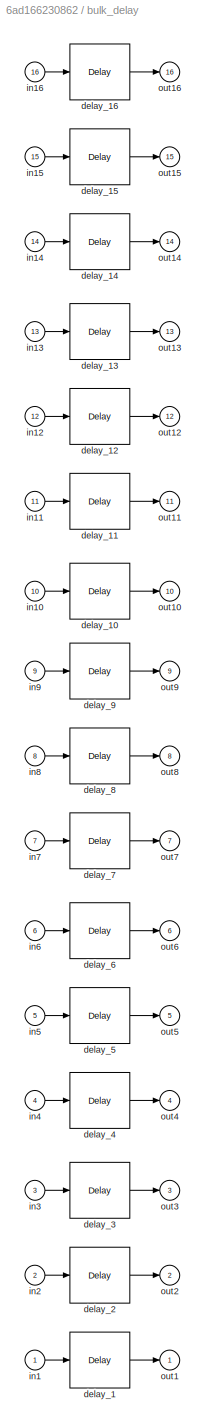
BLOCK [SubSystem] bulk_delay
  AncestorBlock = monroe_library/bulk_delay
  FunctionWithSeparateData = off
  MaskHideContents = off
  MinAlgLoopOccurrences = off
  Opaque = off
  Ports = [16, 16]
  PropExecContextOutsideSubsystem = off
  RTWSystemCode = Auto
  RequestExecContextInheritance = off
  UserDataPersistent = on
BLOCK [Reference] bulk_delay/delay_1  REF=xbsIndex_r4/Delay
  Ports = [1, 1]
  SourceBlock = xbsIndex_r4/Delay
  SourceType = Xilinx Delay Block
  block_type = delay
  dbl_ovrd = off
  en = off
  has_advanced_control = 0
  infoedit = Hardware notes: A delay line is a chain, each link of which is an SRL16 followed by a flip-flop.
  infoeditControl = Selection of Reset will increase slice count due to use of real FFs and instead of SRLs
  latency = 5
  reg_retiming = off
  rst = off
  sg_icon_stat = 60,56,1,1,white,blue,0,ec356abf,right,,[ ],[ ]
  sg_mask_display = fprintf('','COMMENT: begin icon graphics');\npatch([0 60 60 0 0 ],[0 0 56 56 0 ],[0.77 0.82 0.91 ]);\nplot([0 60 60 0 0 ],[0 0 56 56 0 ]);\npatch([12.2 23.76 31.76 39.76 47.76 31.76 20.2 12.2 ],[36.88 36.88 44.88 36.88 44.88 44.88 44.88 36.88 ],[1 1 1 ]);\npatch([20.2 31.76 23.76 12.2 20.2 ],[28.88 28.88 36.88 36.88 28.88 ],[0.931 0.946 0.973 ]);\npatch([12.2 23.76 31.76 20.2 12.2 ],[20.88 20.88 28.88 ...<+308ch>  <repeated x16 — deduplicated; at blocks: delay_1, delay_10, delay_11, delay_12, delay_13, delay_14, delay_15, delay_16, delay_2, delay_3, delay_4, delay_5, delay_6, delay_7, delay_8, delay_9>
  sggui_pos = -1,-1,-1,-1
  xl_area = [0,0,0,0,0,0,0]
  xl_use_area = off
BLOCK [Reference] bulk_delay/delay_10  REF=xbsIndex_r4/Delay
  Ports = [1, 1]
  SourceBlock = xbsIndex_r4/Delay
  SourceType = Xilinx Delay Block
  block_type = delay
  dbl_ovrd = off
  en = off
  has_advanced_control = 0
  infoedit = Hardware notes: A delay line is a chain, each link of which is an SRL16 followed by a flip-flop.
  infoeditControl = Selection of Reset will increase slice count due to use of real FFs and instead of SRLs
  latency = 5
  reg_retiming = off
  rst = off
  sg_icon_stat = 60,56,1,1,white,blue,0,ec356abf,right,,[ ],[ ]
  sggui_pos = -1,-1,-1,-1
  xl_area = [0,0,0,0,0,0,0]
  xl_use_area = off
BLOCK [Reference] bulk_delay/delay_11  REF=xbsIndex_r4/Delay
  Ports = [1, 1]
  SourceBlock = xbsIndex_r4/Delay
  SourceType = Xilinx Delay Block
  block_type = delay
  dbl_ovrd = off
  en = off
  has_advanced_control = 0
  infoedit = Hardware notes: A delay line is a chain, each link of which is an SRL16 followed by a flip-flop.
  infoeditControl = Selection of Reset will increase slice count due to use of real FFs and instead of SRLs
  latency = 5
  reg_retiming = off
  rst = off
  sg_icon_stat = 60,56,1,1,white,blue,0,ec356abf,right,,[ ],[ ]
  sggui_pos = -1,-1,-1,-1
  xl_area = [0,0,0,0,0,0,0]
  xl_use_area = off
BLOCK [Reference] bulk_delay/delay_12  REF=xbsIndex_r4/Delay
  Ports = [1, 1]
  SourceBlock = xbsIndex_r4/Delay
  SourceType = Xilinx Delay Block
  block_type = delay
  dbl_ovrd = off
  en = off
  has_advanced_control = 0
  infoedit = Hardware notes: A delay line is a chain, each link of which is an SRL16 followed by a flip-flop.
  infoeditControl = Selection of Reset will increase slice count due to use of real FFs and instead of SRLs
  latency = 5
  reg_retiming = off
  rst = off
  sg_icon_stat = 60,56,1,1,white,blue,0,ec356abf,right,,[ ],[ ]
  sggui_pos = -1,-1,-1,-1
  xl_area = [0,0,0,0,0,0,0]
  xl_use_area = off
BLOCK [Reference] bulk_delay/delay_13  REF=xbsIndex_r4/Delay
  Ports = [1, 1]
  SourceBlock = xbsIndex_r4/Delay
  SourceType = Xilinx Delay Block
  block_type = delay
  dbl_ovrd = off
  en = off
  has_advanced_control = 0
  infoedit = Hardware notes: A delay line is a chain, each link of which is an SRL16 followed by a flip-flop.
  infoeditControl = Selection of Reset will increase slice count due to use of real FFs and instead of SRLs
  latency = 5
  reg_retiming = off
  rst = off
  sg_icon_stat = 60,56,1,1,white,blue,0,ec356abf,right,,[ ],[ ]
  sggui_pos = -1,-1,-1,-1
  xl_area = [0,0,0,0,0,0,0]
  xl_use_area = off
BLOCK [Reference] bulk_delay/delay_14  REF=xbsIndex_r4/Delay
  Ports = [1, 1]
  SourceBlock = xbsIndex_r4/Delay
  SourceType = Xilinx Delay Block
  block_type = delay
  dbl_ovrd = off
  en = off
  has_advanced_control = 0
  infoedit = Hardware notes: A delay line is a chain, each link of which is an SRL16 followed by a flip-flop.
  infoeditControl = Selection of Reset will increase slice count due to use of real FFs and instead of SRLs
  latency = 5
  reg_retiming = off
  rst = off
  sg_icon_stat = 60,56,1,1,white,blue,0,ec356abf,right,,[ ],[ ]
  sggui_pos = -1,-1,-1,-1
  xl_area = [0,0,0,0,0,0,0]
  xl_use_area = off
BLOCK [Reference] bulk_delay/delay_15  REF=xbsIndex_r4/Delay
  Ports = [1, 1]
  SourceBlock = xbsIndex_r4/Delay
  SourceType = Xilinx Delay Block
  block_type = delay
  dbl_ovrd = off
  en = off
  has_advanced_control = 0
  infoedit = Hardware notes: A delay line is a chain, each link of which is an SRL16 followed by a flip-flop.
  infoeditControl = Selection of Reset will increase slice count due to use of real FFs and instead of SRLs
  latency = 5
  reg_retiming = off
  rst = off
  sg_icon_stat = 60,56,1,1,white,blue,0,ec356abf,right,,[ ],[ ]
  sggui_pos = -1,-1,-1,-1
  xl_area = [0,0,0,0,0,0,0]
  xl_use_area = off
BLOCK [Reference] bulk_delay/delay_16  REF=xbsIndex_r4/Delay
  Ports = [1, 1]
  SourceBlock = xbsIndex_r4/Delay
  SourceType = Xilinx Delay Block
  block_type = delay
  dbl_ovrd = off
  en = off
  has_advanced_control = 0
  infoedit = Hardware notes: A delay line is a chain, each link of which is an SRL16 followed by a flip-flop.
  infoeditControl = Selection of Reset will increase slice count due to use of real FFs and instead of SRLs
  latency = 5
  reg_retiming = off
  rst = off
  sg_icon_stat = 60,56,1,1,white,blue,0,ec356abf,right,,[ ],[ ]
  sggui_pos = -1,-1,-1,-1
  xl_area = [0,0,0,0,0,0,0]
  xl_use_area = off
BLOCK [Reference] bulk_delay/delay_2  REF=xbsIndex_r4/Delay
  Ports = [1, 1]
  SourceBlock = xbsIndex_r4/Delay
  SourceType = Xilinx Delay Block
  block_type = delay
  dbl_ovrd = off
  en = off
  has_advanced_control = 0
  infoedit = Hardware notes: A delay line is a chain, each link of which is an SRL16 followed by a flip-flop.
  infoeditControl = Selection of Reset will increase slice count due to use of real FFs and instead of SRLs
  latency = 5
  reg_retiming = off
  rst = off
  sg_icon_stat = 60,56,1,1,white,blue,0,ec356abf,right,,[ ],[ ]
  sggui_pos = -1,-1,-1,-1
  xl_area = [0,0,0,0,0,0,0]
  xl_use_area = off
BLOCK [Reference] bulk_delay/delay_3  REF=xbsIndex_r4/Delay
  Ports = [1, 1]
  SourceBlock = xbsIndex_r4/Delay
  SourceType = Xilinx Delay Block
  block_type = delay
  dbl_ovrd = off
  en = off
  has_advanced_control = 0
  infoedit = Hardware notes: A delay line is a chain, each link of which is an SRL16 followed by a flip-flop.
  infoeditControl = Selection of Reset will increase slice count due to use of real FFs and instead of SRLs
  latency = 5
  reg_retiming = off
  rst = off
  sg_icon_stat = 60,56,1,1,white,blue,0,ec356abf,right,,[ ],[ ]
  sggui_pos = -1,-1,-1,-1
  xl_area = [0,0,0,0,0,0,0]
  xl_use_area = off
BLOCK [Reference] bulk_delay/delay_4  REF=xbsIndex_r4/Delay
  Ports = [1, 1]
  SourceBlock = xbsIndex_r4/Delay
  SourceType = Xilinx Delay Block
  block_type = delay
  dbl_ovrd = off
  en = off
  has_advanced_control = 0
  infoedit = Hardware notes: A delay line is a chain, each link of which is an SRL16 followed by a flip-flop.
  infoeditControl = Selection of Reset will increase slice count due to use of real FFs and instead of SRLs
  latency = 5
  reg_retiming = off
  rst = off
  sg_icon_stat = 60,56,1,1,white,blue,0,ec356abf,right,,[ ],[ ]
  sggui_pos = -1,-1,-1,-1
  xl_area = [0,0,0,0,0,0,0]
  xl_use_area = off
BLOCK [Reference] bulk_delay/delay_5  REF=xbsIndex_r4/Delay
  Ports = [1, 1]
  SourceBlock = xbsIndex_r4/Delay
  SourceType = Xilinx Delay Block
  block_type = delay
  dbl_ovrd = off
  en = off
  has_advanced_control = 0
  infoedit = Hardware notes: A delay line is a chain, each link of which is an SRL16 followed by a flip-flop.
  infoeditControl = Selection of Reset will increase slice count due to use of real FFs and instead of SRLs
  latency = 5
  reg_retiming = off
  rst = off
  sg_icon_stat = 60,56,1,1,white,blue,0,ec356abf,right,,[ ],[ ]
  sggui_pos = -1,-1,-1,-1
  xl_area = [0,0,0,0,0,0,0]
  xl_use_area = off
BLOCK [Reference] bulk_delay/delay_6  REF=xbsIndex_r4/Delay
  Ports = [1, 1]
  SourceBlock = xbsIndex_r4/Delay
  SourceType = Xilinx Delay Block
  block_type = delay
  dbl_ovrd = off
  en = off
  has_advanced_control = 0
  infoedit = Hardware notes: A delay line is a chain, each link of which is an SRL16 followed by a flip-flop.
  infoeditControl = Selection of Reset will increase slice count due to use of real FFs and instead of SRLs
  latency = 5
  reg_retiming = off
  rst = off
  sg_icon_stat = 60,56,1,1,white,blue,0,ec356abf,right,,[ ],[ ]
  sggui_pos = -1,-1,-1,-1
  xl_area = [0,0,0,0,0,0,0]
  xl_use_area = off
BLOCK [Reference] bulk_delay/delay_7  REF=xbsIndex_r4/Delay
  Ports = [1, 1]
  SourceBlock = xbsIndex_r4/Delay
  SourceType = Xilinx Delay Block
  block_type = delay
  dbl_ovrd = off
  en = off
  has_advanced_control = 0
  infoedit = Hardware notes: A delay line is a chain, each link of which is an SRL16 followed by a flip-flop.
  infoeditControl = Selection of Reset will increase slice count due to use of real FFs and instead of SRLs
  latency = 5
  reg_retiming = off
  rst = off
  sg_icon_stat = 60,56,1,1,white,blue,0,ec356abf,right,,[ ],[ ]
  sggui_pos = -1,-1,-1,-1
  xl_area = [0,0,0,0,0,0,0]
  xl_use_area = off
BLOCK [Reference] bulk_delay/delay_8  REF=xbsIndex_r4/Delay
  Ports = [1, 1]
  SourceBlock = xbsIndex_r4/Delay
  SourceType = Xilinx Delay Block
  block_type = delay
  dbl_ovrd = off
  en = off
  has_advanced_control = 0
  infoedit = Hardware notes: A delay line is a chain, each link of which is an SRL16 followed by a flip-flop.
  infoeditControl = Selection of Reset will increase slice count due to use of real FFs and instead of SRLs
  latency = 5
  reg_retiming = off
  rst = off
  sg_icon_stat = 60,56,1,1,white,blue,0,ec356abf,right,,[ ],[ ]
  sggui_pos = -1,-1,-1,-1
  xl_area = [0,0,0,0,0,0,0]
  xl_use_area = off
BLOCK [Reference] bulk_delay/delay_9  REF=xbsIndex_r4/Delay
  Ports = [1, 1]
  SourceBlock = xbsIndex_r4/Delay
  SourceType = Xilinx Delay Block
  block_type = delay
  dbl_ovrd = off
  en = off
  has_advanced_control = 0
  infoedit = Hardware notes: A delay line is a chain, each link of which is an SRL16 followed by a flip-flop.
  infoeditControl = Selection of Reset will increase slice count due to use of real FFs and instead of SRLs
  latency = 5
  reg_retiming = off
  rst = off
  sg_icon_stat = 60,56,1,1,white,blue,0,ec356abf,right,,[ ],[ ]
  sggui_pos = -1,-1,-1,-1
  xl_area = [0,0,0,0,0,0,0]
  xl_use_area = off
BLOCK [Inport] bulk_delay/in1
  IconDisplay = Port number
BLOCK [Inport] bulk_delay/in10
  IconDisplay = Port number
  Port = 10
BLOCK [Inport] bulk_delay/in11
  IconDisplay = Port number
  Port = 11
BLOCK [Inport] bulk_delay/in12
  IconDisplay = Port number
  Port = 12
BLOCK [Inport] bulk_delay/in13
  IconDisplay = Port number
  Port = 13
BLOCK [Inport] bulk_delay/in14
  IconDisplay = Port number
  Port = 14
BLOCK [Inport] bulk_delay/in15
  IconDisplay = Port number
  Port = 15
BLOCK [Inport] bulk_delay/in16
  IconDisplay = Port number
  Port = 16
BLOCK [Inport] bulk_delay/in2
  IconDisplay = Port number
  Port = 2
BLOCK [Inport] bulk_delay/in3
  IconDisplay = Port number
  Port = 3
BLOCK [Inport] bulk_delay/in4
  IconDisplay = Port number
  Port = 4
BLOCK [Inport] bulk_delay/in5
  IconDisplay = Port number
  Port = 5
BLOCK [Inport] bulk_delay/in6
  IconDisplay = Port number
  Port = 6
BLOCK [Inport] bulk_delay/in7
  IconDisplay = Port number
  Port = 7
BLOCK [Inport] bulk_delay/in8
  IconDisplay = Port number
  Port = 8
BLOCK [Inport] bulk_delay/in9
  IconDisplay = Port number
  Port = 9
BLOCK [Outport] bulk_delay/out1
  IconDisplay = Port number
BLOCK [Outport] bulk_delay/out10
  IconDisplay = Port number
  Port = 10
BLOCK [Outport] bulk_delay/out11
  IconDisplay = Port number
  Port = 11
BLOCK [Outport] bulk_delay/out12
  IconDisplay = Port number
  Port = 12
BLOCK [Outport] bulk_delay/out13
  IconDisplay = Port number
  Port = 13
BLOCK [Outport] bulk_delay/out14
  IconDisplay = Port number
  Port = 14
BLOCK [Outport] bulk_delay/out15
  IconDisplay = Port number
  Port = 15
BLOCK [Outport] bulk_delay/out16
  IconDisplay = Port number
  Port = 16
BLOCK [Outport] bulk_delay/out2
  IconDisplay = Port number
  Port = 2
BLOCK [Outport] bulk_delay/out3
  IconDisplay = Port number
  Port = 3
BLOCK [Outport] bulk_delay/out4
  IconDisplay = Port number
  Port = 4
BLOCK [Outport] bulk_delay/out5
  IconDisplay = Port number
  Port = 5
BLOCK [Outport] bulk_delay/out6
  IconDisplay = Port number
  Port = 6
BLOCK [Outport] bulk_delay/out7
  IconDisplay = Port number
  Port = 7
BLOCK [Outport] bulk_delay/out8
  IconDisplay = Port number
  Port = 8
BLOCK [Outport] bulk_delay/out9
  IconDisplay = Port number
  Port = 9
BLOCK [Reference] pfb_fir_real  REF=monroe_library/pfb_fir_real  (lib defined in mdl_6e3ec1066caf, mdl_8e463b7c25be, +1 more)
  Ports = [17, 18]
  SourceBlock = monroe_library/pfb_fir_real
  SourceType = pfb_coeff_gen_dual
  UserDataPersistent = on
  autoplace_mode = 'Attached to both ADC0 and ADC1 (interleaved)'
  autoplace_optimize = off
  bin_width = 1
  bram_latency_coeff = off
  bram_latency_delay = off
  cheap_sync = off
  coeff_n_bits = 18
  data_n_bits = 18
  endDelay = off
  end_scale_val = 1
  n_sim_inputs = 4
  n_taps = 4
  output_bit_width = 18
  pack_delays = on
  pfb_size = 14
  register_counter = off
  window_fn = hamming
BLOCK [Reference] pfb_fir_real1  REF=monroe_library/pfb_fir_real  (lib defined in mdl_6e3ec1066caf, mdl_8e463b7c25be, +1 more)
  Ports = [17, 18]
  SourceBlock = monroe_library/pfb_fir_real
  SourceType = pfb_coeff_gen_dual
  UserDataPersistent = on
  autoplace_mode = 'Attached to both ADC0 and ADC1 (interleaved)'
  autoplace_optimize = off
  bin_width = 1
  bram_latency_coeff = off
  bram_latency_delay = off
  cheap_sync = off
  coeff_n_bits = 18
  data_n_bits = 18
  endDelay = off
  end_scale_val = 1
  n_sim_inputs = 4
  n_taps = 4
  output_bit_width = 18
  pack_delays = on
  pfb_size = 14
  register_counter = off
  window_fn = hamming
LINE adc083000x2:1 -> bulk_delay:1
LINE adc083000x2:10 -> bulk_delay:10
LINE adc083000x2:11 -> bulk_delay:11
LINE adc083000x2:12 -> bulk_delay:12
LINE adc083000x2:13 -> bulk_delay:13
LINE adc083000x2:14 -> bulk_delay:14
LINE adc083000x2:15 -> bulk_delay:15
LINE adc083000x2:16 -> bulk_delay:16
LINE adc083000x2:2 -> bulk_delay:2
LINE adc083000x2:3 -> bulk_delay:3
LINE adc083000x2:4 -> bulk_delay:4
LINE adc083000x2:5 -> bulk_delay:5
LINE adc083000x2:6 -> bulk_delay:6
LINE adc083000x2:7 -> bulk_delay:7
LINE adc083000x2:8 -> bulk_delay:8
LINE adc083000x2:9 -> bulk_delay:9
